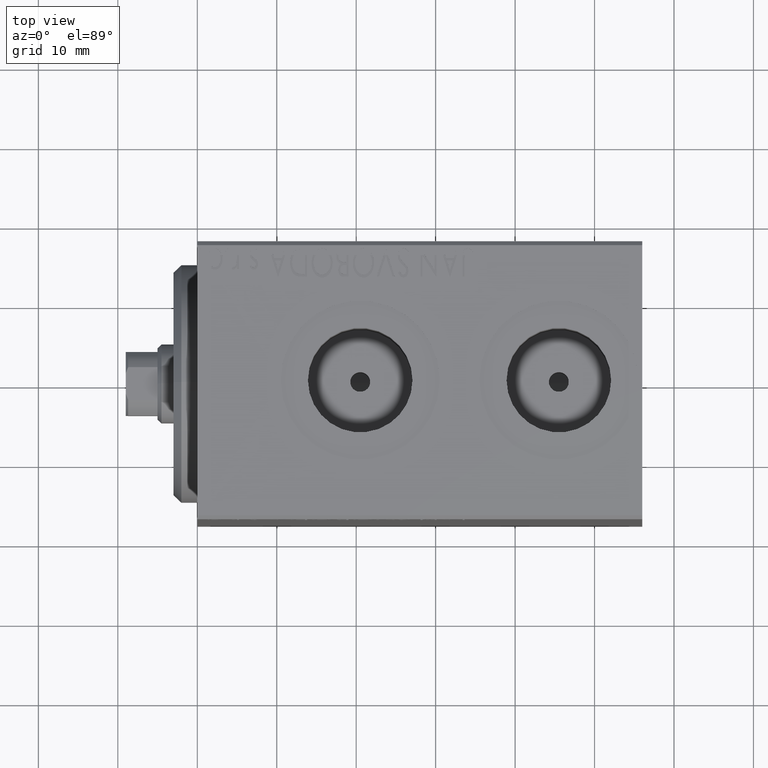
[diagram: clean part render]
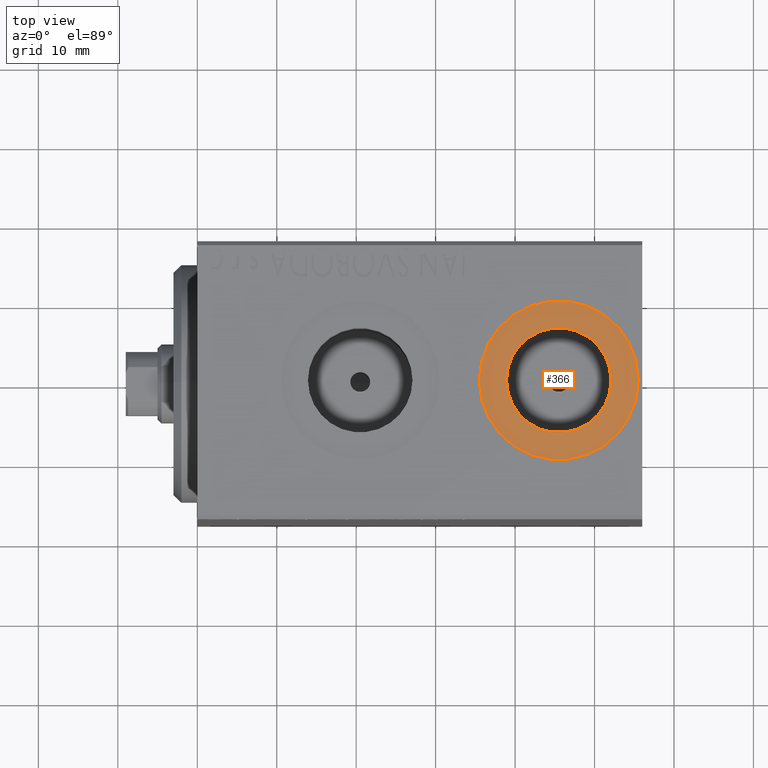
[diagram: same view with one face highlighted and labeled with its STEP entity id]
A machine part, top view. The second image highlights one B-rep face of the part: STEP entity #366.
In plain terms, the highlighted planar face has unit normal (0, 0, 1).
Its self-contained STEP definition (entity closure, byte-faithful):
#10 = DIRECTION ( 'NONE',  ( 1.000000000000000000, 0.000000000000000000, -0.000000000000000000 ) ) ;
#255 = VERTEX_POINT ( 'NONE', #5410 ) ;
#366 = ADVANCED_FACE ( 'NONE', ( #37453, #27814 ), #6750, .T. ) ;
#1203 = DIRECTION ( 'NONE',  ( 1.000000000000000000, 0.000000000000000000, 0.000000000000000000 ) ) ;
#1448 = ORIENTED_EDGE ( 'NONE', *, *, #35798, .F. ) ;
#1806 = EDGE_CURVE ( 'NONE', #255, #31293, #32068, .T. ) ;
#2601 = AXIS2_PLACEMENT_3D ( 'NONE', #14870, #8388, #1203 ) ;
#3594 = CARTESIAN_POINT ( 'NONE',  ( 45.50000000000000000, 1.486905836551550657E-15, 27.39999999999999147 ) ) ;
#4473 = CARTESIAN_POINT ( 'NONE',  ( 45.50000000000000000, 1.486905836551550657E-15, 27.39999999999999147 ) ) ;
#4870 = AXIS2_PLACEMENT_3D ( 'NONE', #15333, #33054, #16212 ) ;
#5410 = CARTESIAN_POINT ( 'NONE',  ( 35.50000000000000000, 2.711552635698903519E-15, 27.39999999999999147 ) ) ;
#5525 = CARTESIAN_POINT ( 'NONE',  ( 55.50000000000000000, 1.486905836551550657E-15, 27.39999999999999147 ) ) ;
#6158 = ORIENTED_EDGE ( 'NONE', *, *, #42755, .T. ) ;
#6476 = AXIS2_PLACEMENT_3D ( 'NONE', #4473, #24455, #38551 ) ;
#6750 = PLANE ( 'NONE',  #41373 ) ;
#8388 = DIRECTION ( 'NONE',  ( 0.000000000000000000, 0.000000000000000000, 1.000000000000000000 ) ) ;
#10515 = EDGE_LOOP ( 'NONE', ( #6158, #15245 ) ) ;
#10767 = CARTESIAN_POINT ( 'NONE',  ( 45.50000000000000000, 1.486905836551550657E-15, 27.39999999999999147 ) ) ;
#13904 = DIRECTION ( 'NONE',  ( 1.000000000000000000, 0.000000000000000000, 0.000000000000000000 ) ) ;
#14870 = CARTESIAN_POINT ( 'NONE',  ( 45.50000000000000000, 1.486905836551550657E-15, 27.39999999999999147 ) ) ;
#15245 = ORIENTED_EDGE ( 'NONE', *, *, #1806, .T. ) ;
#15333 = CARTESIAN_POINT ( 'NONE',  ( 45.50000000000000000, 1.486905836551550657E-15, 27.39999999999999147 ) ) ;
#16212 = DIRECTION ( 'NONE',  ( 1.000000000000000000, 0.000000000000000000, 0.000000000000000000 ) ) ;
#16670 = EDGE_LOOP ( 'NONE', ( #41941, #1448 ) ) ;
#18344 = VERTEX_POINT ( 'NONE', #21970 ) ;
#21494 = CIRCLE ( 'NONE', #6476, 10.00000000000000178 ) ;
#21970 = CARTESIAN_POINT ( 'NONE',  ( 38.91999999999999460, 2.292723430390509107E-15, 27.39999999999999147 ) ) ;
#24455 = DIRECTION ( 'NONE',  ( 0.000000000000000000, 0.000000000000000000, 1.000000000000000000 ) ) ;
#25959 = VERTEX_POINT ( 'NONE', #28523 ) ;
#26244 = EDGE_CURVE ( 'NONE', #25959, #18344, #31144, .T. ) ;
#27814 = FACE_OUTER_BOUND ( 'NONE', #10515, .T. ) ;
#28523 = CARTESIAN_POINT ( 'NONE',  ( 52.07999999999999829, 1.486905836551550657E-15, 27.39999999999999147 ) ) ;
#31144 = CIRCLE ( 'NONE', #35427, 6.580000000000002736 ) ;
#31293 = VERTEX_POINT ( 'NONE', #5525 ) ;
#32068 = CIRCLE ( 'NONE', #4870, 10.00000000000000178 ) ;
#33054 = DIRECTION ( 'NONE',  ( 0.000000000000000000, 0.000000000000000000, 1.000000000000000000 ) ) ;
#34087 = DIRECTION ( 'NONE',  ( 0.000000000000000000, 0.000000000000000000, 1.000000000000000000 ) ) ;
#35187 = DIRECTION ( 'NONE',  ( 0.000000000000000000, 0.000000000000000000, 1.000000000000000000 ) ) ;
#35427 = AXIS2_PLACEMENT_3D ( 'NONE', #3594, #35187, #13904 ) ;
#35547 = CIRCLE ( 'NONE', #2601, 6.580000000000002736 ) ;
#35798 = EDGE_CURVE ( 'NONE', #18344, #25959, #35547, .T. ) ;
#37453 = FACE_BOUND ( 'NONE', #16670, .T. ) ;
#38551 = DIRECTION ( 'NONE',  ( 1.000000000000000000, 0.000000000000000000, 0.000000000000000000 ) ) ;
#41373 = AXIS2_PLACEMENT_3D ( 'NONE', #10767, #34087, #10 ) ;
#41941 = ORIENTED_EDGE ( 'NONE', *, *, #26244, .F. ) ;
#42755 = EDGE_CURVE ( 'NONE', #31293, #255, #21494, .T. ) ;